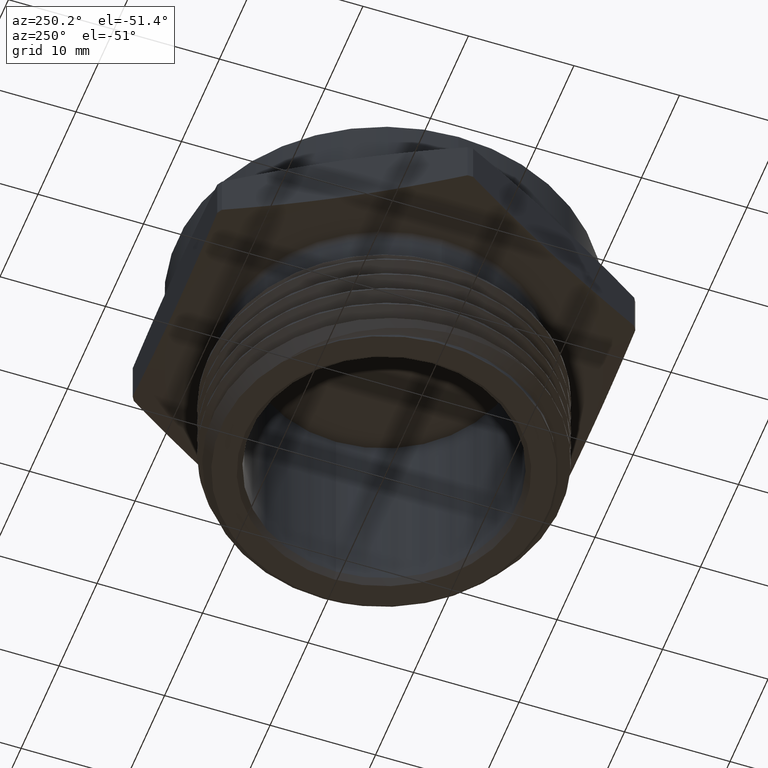
[diagram: clean part render]
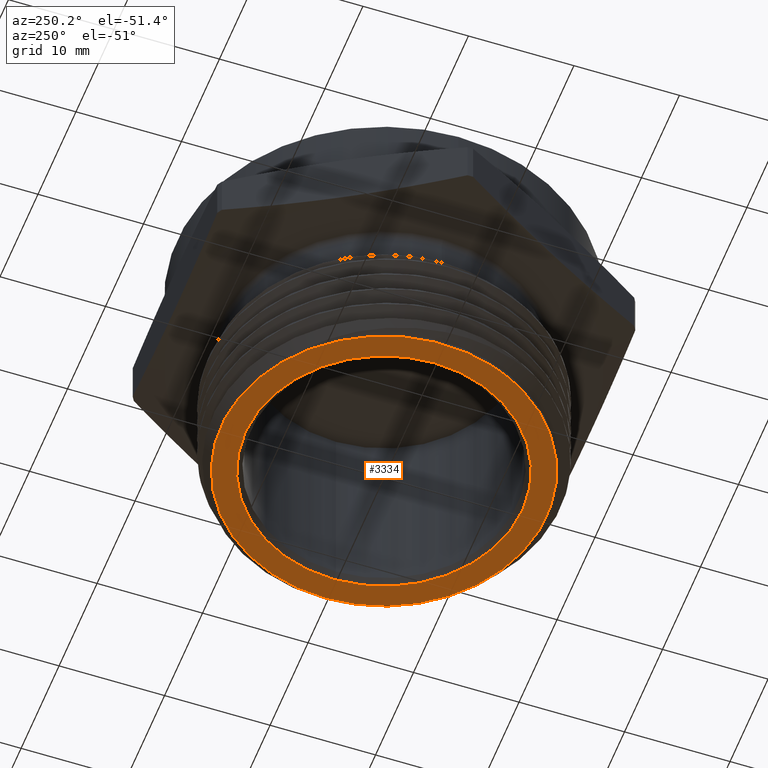
[diagram: same view with one face highlighted and labeled with its STEP entity id]
A machine part, auxiliary view. The second image highlights one B-rep face of the part: STEP entity #3334.
In plain terms, the highlighted planar face has unit normal (0, 0, -1).
Its self-contained STEP definition (entity closure, byte-faithful):
#890 = CARTESIAN_POINT ( 'NONE',  ( 0.0000000000000000000, 0.0000000000000000000, -0.5800000000000000700 ) ) ;
#891 = DIRECTION ( 'NONE',  ( -0.0000000000000000000, -0.0000000000000000000, 1.000000000000000000 ) ) ;
#892 = DIRECTION ( 'NONE',  ( 1.000000000000000000, 0.0000000000000000000, 0.0000000000000000000 ) ) ;
#946 = EDGE_LOOP ( 'NONE', ( #1135, #1136 ) ) ;
#951 = EDGE_LOOP ( 'NONE', ( #1137, #1138, #1139 ) ) ;
#1135 = ORIENTED_EDGE ( 'NONE', *, *, #1255, .T. ) ;
#1136 = ORIENTED_EDGE ( 'NONE', *, *, #1266, .T. ) ;
#1137 = ORIENTED_EDGE ( 'NONE', *, *, #1468, .F. ) ;
#1138 = ORIENTED_EDGE ( 'NONE', *, *, #1265, .F. ) ;
#1139 = ORIENTED_EDGE ( 'NONE', *, *, #1242, .F. ) ;
#1208 = CIRCLE ( 'NONE', #1314, 0.6066499999999999100 ) ;
#1242 = EDGE_CURVE ( 'NONE', #1630, #1608, #1208, .T. ) ;
#1255 = EDGE_CURVE ( 'NONE', #1614, #1587, #2415, .T. ) ;
#1265 = EDGE_CURVE ( 'NONE', #1608, #3301, #2934, .T. ) ;
#1266 = EDGE_CURVE ( 'NONE', #1587, #1614, #2423, .T. ) ;
#1314 = AXIS2_PLACEMENT_3D ( 'NONE', #1695, #1696, #1697 ) ;
#1318 = AXIS2_PLACEMENT_3D ( 'NONE', #1787, #1788, #1789 ) ;
#1322 = AXIS2_PLACEMENT_3D ( 'NONE', #3174, #3175, #3176 ) ;
#1345 = AXIS2_PLACEMENT_3D ( 'NONE', #890, #891, #892 ) ;
#1392 = AXIS2_PLACEMENT_3D ( 'NONE', #2345, #2343, #2348 ) ;
#1468 = EDGE_CURVE ( 'NONE', #3301, #1630, #2467, .T. ) ;
#1587 = VERTEX_POINT ( 'NONE', #2207 ) ;
#1608 = VERTEX_POINT ( 'NONE', #2227 ) ;
#1614 = VERTEX_POINT ( 'NONE', #2232 ) ;
#1630 = VERTEX_POINT ( 'NONE', #2246 ) ;
#1695 = CARTESIAN_POINT ( 'NONE',  ( 0.0000000000000000000, 0.0000000000000000000, -0.5800000000000000700 ) ) ;
#1696 = DIRECTION ( 'NONE',  ( -0.0000000000000000000, -0.0000000000000000000, 1.000000000000000000 ) ) ;
#1697 = DIRECTION ( 'NONE',  ( 1.000000000000000000, 0.0000000000000000000, 0.0000000000000000000 ) ) ;
#1787 = CARTESIAN_POINT ( 'NONE',  ( 0.0000000000000000000, 0.0000000000000000000, -0.5799999999999998500 ) ) ;
#1788 = DIRECTION ( 'NONE',  ( -0.0000000000000000000, -0.0000000000000000000, 1.000000000000000000 ) ) ;
#1789 = DIRECTION ( 'NONE',  ( 1.000000000000000000, 0.0000000000000000000, 0.0000000000000000000 ) ) ;
#1820 = CARTESIAN_POINT ( 'NONE',  ( -0.3535519143512350100, 0.4933772083478243900, -0.5800000000000000700 ) ) ;
#1821 = CARTESIAN_POINT ( 'NONE',  ( -0.3370093885856370000, 0.5044292760190817200, -0.5799999999999999600 ) ) ;
#2207 = CARTESIAN_POINT ( 'NONE',  ( 0.5175000000000001800, 6.337547185587554200E-017, -0.5799999999999998500 ) ) ;
#2227 = CARTESIAN_POINT ( 'NONE',  ( -0.3370093885856370000, 0.5044292760190817200, -0.5799999999999999600 ) ) ;
#2232 = CARTESIAN_POINT ( 'NONE',  ( -0.5175000000000001800, 0.0000000000000000000, -0.5799999999999998500 ) ) ;
#2246 = CARTESIAN_POINT ( 'NONE',  ( 0.6066499999999999100, 0.0000000000000000000, -0.5800000000000000700 ) ) ;
#2304 = CARTESIAN_POINT ( 'NONE',  ( -0.5050184525457394000, -0.3361258470994258900, -0.5800000000000000700 ) ) ;
#2343 = DIRECTION ( 'NONE',  ( 0.0000000000000000000, 0.0000000000000000000, -1.000000000000000000 ) ) ;
#2345 = CARTESIAN_POINT ( 'NONE',  ( 0.0000000000000000000, 0.0000000000000000000, -0.5799999999999999600 ) ) ;
#2346 = PLANE ( 'NONE',  #1392 ) ;
#2348 = DIRECTION ( 'NONE',  ( -1.000000000000000000, 0.0000000000000000000, -0.0000000000000000000 ) ) ;
#2415 = CIRCLE ( 'NONE', #1318, 0.5175000000000001800 ) ;
#2423 = CIRCLE ( 'NONE', #1322, 0.5175000000000001800 ) ;
#2467 = CIRCLE ( 'NONE', #1345, 0.6066499999999999100 ) ;
#2572 = FACE_OUTER_BOUND ( 'NONE', #951, .T. ) ;
#2575 = FACE_BOUND ( 'NONE', #946, .T. ) ;
#2934 = B_SPLINE_CURVE_WITH_KNOTS ( 'NONE', 3,
 ( #1821, #1820, #3151, #3152, #3153, #3154, #3155, #3156, #3157, #3158, #3159, #3160, #3161, #3162, #3163, #3164, #3165, #3166, #3167, #3168, #3169, #3170, #3171 ),
 .UNSPECIFIED., .F., .F.,
 ( 4, 2, 1, 2, 2, 2, 2, 2, 2, 2, 2, 4 ),
 ( 0.0000000000000000000, 0.001515089062320364600, 0.003030178124640729300, 0.004545267186961093700, 0.006060356249281458600, 0.009090534373922180500, 0.01212071249856290300, 0.01515089062320362800, 0.01818106874784435100, 0.02121124687248507300, 0.02272633593480543800, 0.02424142499712579600 ),
 .UNSPECIFIED. ) ;
#3151 = CARTESIAN_POINT ( 'NONE',  ( -0.3695666063989895300, 0.4814952068070786900, -0.5799999999999999600 ) ) ;
#3152 = CARTESIAN_POINT ( 'NONE',  ( -0.4002091387736996200, 0.4563439010061060600, -0.5799999999999998500 ) ) ;
#3153 = CARTESIAN_POINT ( 'NONE',  ( -0.4294571621025096700, 0.4298297681948723400, -0.5800000000000000700 ) ) ;
#3154 = CARTESIAN_POINT ( 'NONE',  ( -0.4559653641252112700, 0.4006380604405189700, -0.5800000000000000700 ) ) ;
#3155 = CARTESIAN_POINT ( 'NONE',  ( -0.4810887831903928900, 0.3700930307959943200, -0.5800000000000001800 ) ) ;
#3156 = CARTESIAN_POINT ( 'NONE',  ( -0.4929882749556295200, 0.3540917160914863700, -0.5800000000000000700 ) ) ;
#3157 = CARTESIAN_POINT ( 'NONE',  ( -0.5261332149194912800, 0.3046058161819049100, -0.5799999999999998500 ) ) ;
#3158 = CARTESIAN_POINT ( 'NONE',  ( -0.5449916698083485700, 0.2694176457552701600, -0.5799999999999997400 ) ) ;
#3159 = CARTESIAN_POINT ( 'NONE',  ( -0.5754673472415010600, 0.1960589713928790100, -0.5799999999999997400 ) ) ;
#3160 = CARTESIAN_POINT ( 'NONE',  ( -0.5871005776276112500, 0.1578480598678372600, -0.5799999999999999600 ) ) ;
#3161 = CARTESIAN_POINT ( 'NONE',  ( -0.6026741094545333700, 0.07991880909961308900, -0.5800000000000000700 ) ) ;
#3162 = CARTESIAN_POINT ( 'NONE',  ( -0.6066172920940867700, 0.04019569440933264800, -0.5800000000000001800 ) ) ;
#3163 = CARTESIAN_POINT ( 'NONE',  ( -0.6066823012119317800, -0.03920227433205848700, -0.5800000000000001800 ) ) ;
#3164 = CARTESIAN_POINT ( 'NONE',  ( -0.6028072835461477700, -0.07892555562666712900, -0.5800000000000001800 ) ) ;
#3165 = CARTESIAN_POINT ( 'NONE',  ( -0.5873442509859494500, -0.1569477469128426300, -0.5800000000000001800 ) ) ;
#3166 = CARTESIAN_POINT ( 'NONE',  ( -0.5759160264198345300, -0.1946876033231859400, -0.5799999999999998500 ) ) ;
#3167 = CARTESIAN_POINT ( 'NONE',  ( -0.5533508773734937500, -0.2494325690015621600, -0.5799999999999997400 ) ) ;
#3168 = CARTESIAN_POINT ( 'NONE',  ( -0.5448935134140974200, -0.2674142125736477800, -0.5800000000000001800 ) ) ;
#3169 = CARTESIAN_POINT ( 'NONE',  ( -0.5262202494582871600, -0.3025087620337650900, -0.5800000000000000700 ) ) ;
#3170 = CARTESIAN_POINT ( 'NONE',  ( -0.5160415448809204700, -0.3195639995610080600, -0.5799999999999996300 ) ) ;
#3171 = CARTESIAN_POINT ( 'NONE',  ( -0.5050184525457394000, -0.3361258470994258900, -0.5800000000000000700 ) ) ;
#3174 = CARTESIAN_POINT ( 'NONE',  ( 0.0000000000000000000, 0.0000000000000000000, -0.5799999999999998500 ) ) ;
#3175 = DIRECTION ( 'NONE',  ( -0.0000000000000000000, -0.0000000000000000000, 1.000000000000000000 ) ) ;
#3176 = DIRECTION ( 'NONE',  ( 1.000000000000000000, 0.0000000000000000000, 0.0000000000000000000 ) ) ;
#3301 = VERTEX_POINT ( 'NONE', #2304 ) ;
#3334 = ADVANCED_FACE ( 'NONE', ( #2575, #2572 ), #2346, .T. ) ;